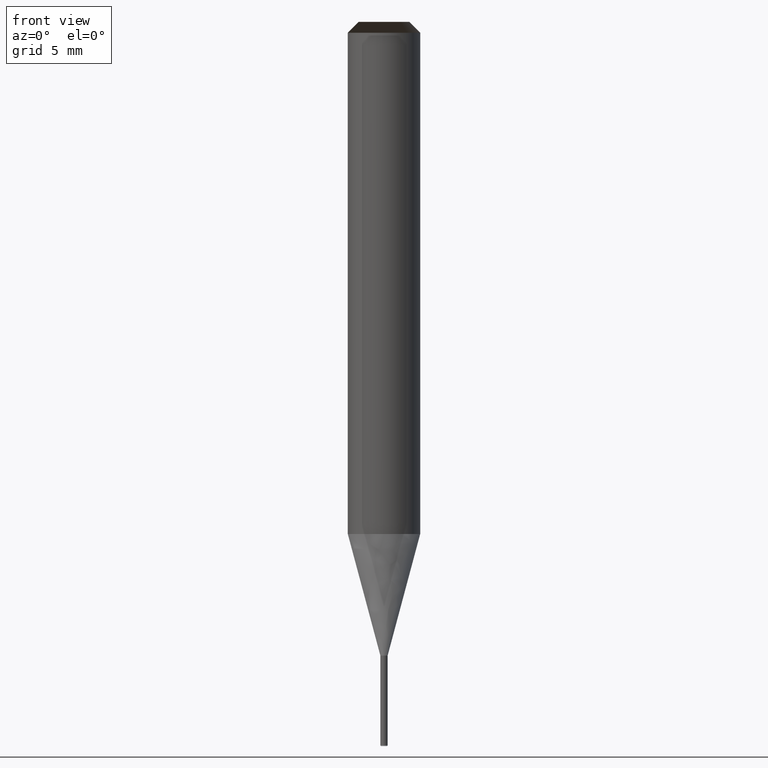
[diagram: clean part render]
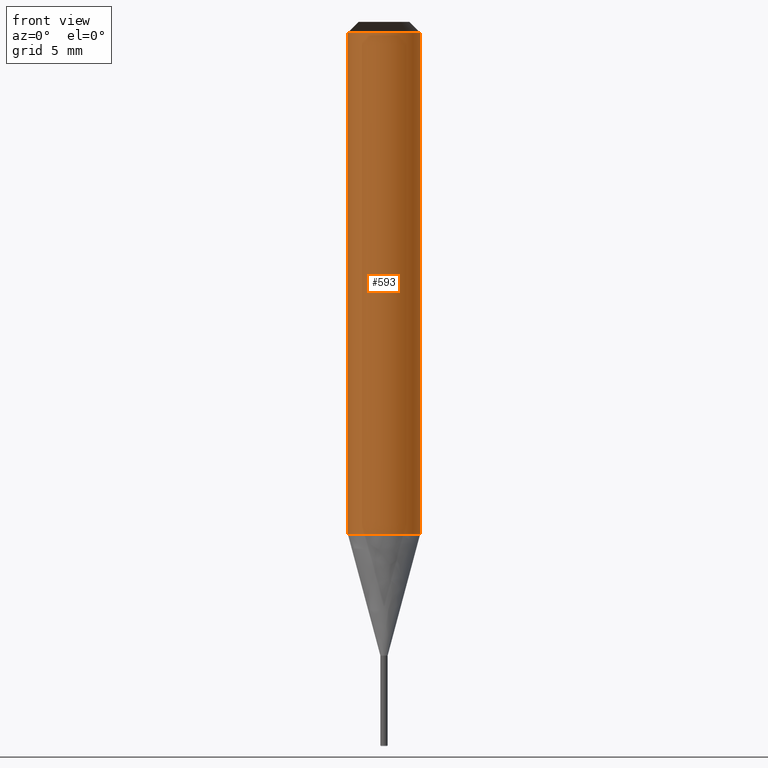
[diagram: same view with one face highlighted and labeled with its STEP entity id]
A machine part, front view. The second image highlights one B-rep face of the part: STEP entity #593.
In plain terms, the highlighted face is a freeform B-spline surface patch.
Its self-contained STEP definition (entity closure, byte-faithful):
#225=CARTESIAN_POINT('',(2.0,0.0,0.0));
#229=CARTESIAN_POINT('',(-2.0,0.0,0.0));
#230=CARTESIAN_POINT('',(2.0,0.0,27.682));
#234=CARTESIAN_POINT('',(-2.0,0.0,27.682));
#244=CARTESIAN_POINT('',(-2.0,-2.0,0.0));
#245=CARTESIAN_POINT('',(0.0,-2.0,0.0));
#246=CARTESIAN_POINT('',(2.0,-2.0,0.0));
#247=CARTESIAN_POINT('',(-2.0,-2.0,27.682));
#248=CARTESIAN_POINT('',(0.0,-2.0,27.682));
#249=CARTESIAN_POINT('',(2.0,-2.0,27.682));
#574=(
BOUNDED_SURFACE()
B_SPLINE_SURFACE(1,2,(
(#229,#244,#245,#246,#225),
(#234,#247,#248,#249,#230)
), .UNSPECIFIED.,.F.,.F.,.F.)
B_SPLINE_SURFACE_WITH_KNOTS((2,2),(3,2,3),(
0.0,1.0),(
0.0,0.5,1.0), .UNSPECIFIED.)
GEOMETRIC_REPRESENTATION_ITEM()
RATIONAL_B_SPLINE_SURFACE(((1.0,0.707106781187,1.0,0.707106781187,1.0),
(1.0,0.707106781187,1.0,0.707106781187,1.0)
))
REPRESENTATION_ITEM('')
SURFACE()
);
#575=(
BOUNDED_CURVE()
B_SPLINE_CURVE(1,(#234,#229),.UNSPECIFIED.,.F.,.F.)
B_SPLINE_CURVE_WITH_KNOTS((2,2),
(0.0,1.0),.UNSPECIFIED.)
CURVE()
GEOMETRIC_REPRESENTATION_ITEM()
RATIONAL_B_SPLINE_CURVE((1.0,1.0))
REPRESENTATION_ITEM('')
);
#576=(
BOUNDED_CURVE()
B_SPLINE_CURVE(2,(#229,#244,#245,#246,#225),.UNSPECIFIED.,.F.,.F.)
B_SPLINE_CURVE_WITH_KNOTS((3,2,3),
(0.0,0.5,1.0),.UNSPECIFIED.)
CURVE()
GEOMETRIC_REPRESENTATION_ITEM()
RATIONAL_B_SPLINE_CURVE((1.0,0.707106781187,1.0,0.707106781187,1.0))
REPRESENTATION_ITEM('')
);
#577=(
BOUNDED_CURVE()
B_SPLINE_CURVE(1,(#225,#230),.UNSPECIFIED.,.F.,.F.)
B_SPLINE_CURVE_WITH_KNOTS((2,2),
(0.0,1.0),.UNSPECIFIED.)
CURVE()
GEOMETRIC_REPRESENTATION_ITEM()
RATIONAL_B_SPLINE_CURVE((1.0,1.0))
REPRESENTATION_ITEM('')
);
#578=(
BOUNDED_CURVE()
B_SPLINE_CURVE(2,(#230,#249,#248,#247,#234),.UNSPECIFIED.,.F.,.F.)
B_SPLINE_CURVE_WITH_KNOTS((3,2,3),
(0.0,0.5,1.0),.UNSPECIFIED.)
CURVE()
GEOMETRIC_REPRESENTATION_ITEM()
RATIONAL_B_SPLINE_CURVE((1.0,0.707106781187,1.0,0.707106781187,1.0))
REPRESENTATION_ITEM('')
);
#579=VERTEX_POINT('',#225);
#580=VERTEX_POINT('',#229);
#581=VERTEX_POINT('',#230);
#582=VERTEX_POINT('',#234);
#583=EDGE_CURVE('',#582,#580,#575,.T.);
#584=EDGE_CURVE('',#580,#579,#576,.T.);
#585=EDGE_CURVE('',#579,#581,#577,.T.);
#586=EDGE_CURVE('',#581,#582,#578,.T.);
#587=ORIENTED_EDGE('',*,*,#583,.T.);
#588=ORIENTED_EDGE('',*,*,#584,.T.);
#589=ORIENTED_EDGE('',*,*,#585,.T.);
#590=ORIENTED_EDGE('',*,*,#586,.T.);
#591=EDGE_LOOP('',(#587,#588,#589,#590));
#592=FACE_OUTER_BOUND('',#591,.T.);
#593=ADVANCED_FACE('',(#592),#574,.T.);